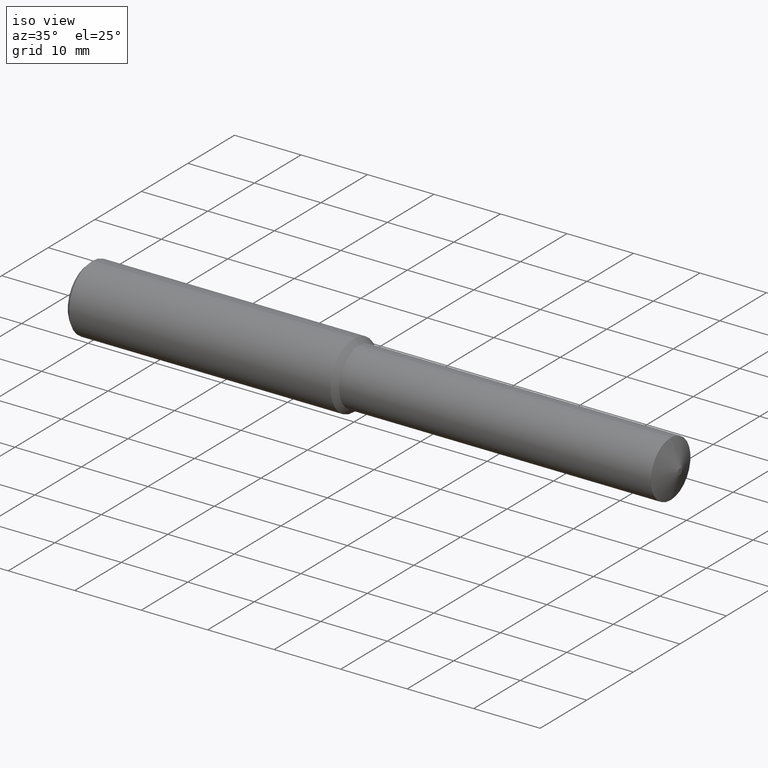
[diagram: clean part render]
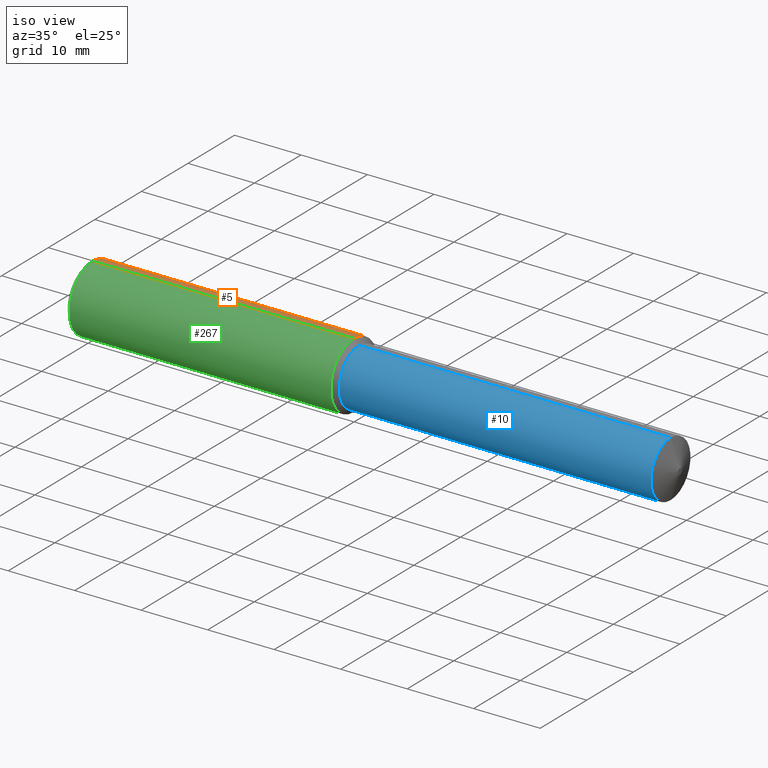
[diagram: same view with three faces highlighted in distinct colors, each labeled with its STEP entity id]
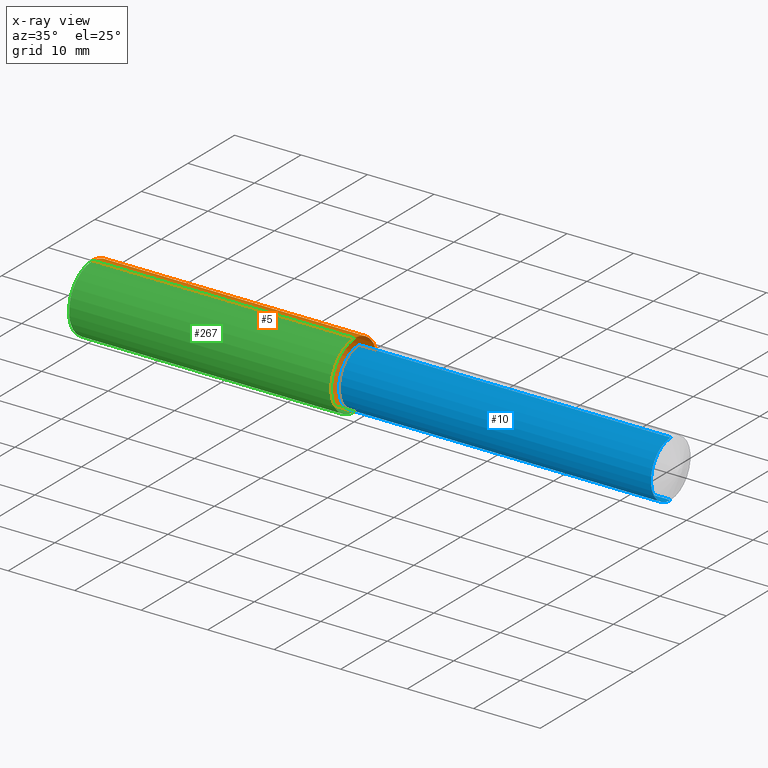
[diagram: x-ray of the same camera — body ghosted, the three highlighted faces saturated]
A machine part, iso view with three faces highlighted in distinct colors.
The next image is the same camera in x-ray (body ghosted, the three faces saturated) — at least one of them is partly hidden behind the body in this view.
Their STEP definitions:

[orange] entity #5 — the highlighted cylindrical surface (partial cylindrical patch) has radius 5 mm, axis along (1, -0, -0).
#5 = ADVANCED_FACE ( 'NONE', ( #375 ), #122, .T. ) ;
#26 = EDGE_CURVE ( 'NONE', #281, #76, #204, .T. ) ;
#27 = VERTEX_POINT ( 'NONE', #201 ) ;
#31 = CIRCLE ( 'NONE', #358, 0.1968503937007876070 ) ;
#34 = DIRECTION ( 'NONE',  ( 1.000000000000000000, -0.000000000000000000, -0.000000000000000000 ) ) ;
#37 = EDGE_CURVE ( 'NONE', #27, #76, #31, .T. ) ;
#61 = CARTESIAN_POINT ( 'NONE',  ( 1.574803149606299302, 0.000000000000000000, 0.1968503937007876070 ) ) ;
#63 = DIRECTION ( 'NONE',  ( 1.000000000000000000, -0.000000000000000000, -0.000000000000000000 ) ) ;
#64 = CARTESIAN_POINT ( 'NONE',  ( -0.03808593750000075634, 0.000000000000000000, 0.000000000000000000 ) ) ;
#66 = DIRECTION ( 'NONE',  ( 1.000000000000000000, -0.000000000000000000, -0.000000000000000000 ) ) ;
#70 = EDGE_CURVE ( 'NONE', #283, #27, #371, .T. ) ;
#75 = DIRECTION ( 'NONE',  ( 1.000000000000000000, -0.000000000000000000, -0.000000000000000000 ) ) ;
#76 = VERTEX_POINT ( 'NONE', #61 ) ;
#80 = VECTOR ( 'NONE', #34, 39.37007874015748143 ) ;
#89 = CARTESIAN_POINT ( 'NONE',  ( 1.574803149606299302, 0.000000000000000000, 0.000000000000000000 ) ) ;
#90 = AXIS2_PLACEMENT_3D ( 'NONE', #333, #75, #187 ) ;
#95 = ORIENTED_EDGE ( 'NONE', *, *, #339, .T. ) ;
#109 = ORIENTED_EDGE ( 'NONE', *, *, #37, .F. ) ;
#122 = CYLINDRICAL_SURFACE ( 'NONE', #224, 0.1968503937007875237 ) ;
#141 = ORIENTED_EDGE ( 'NONE', *, *, #70, .F. ) ;
#151 = VECTOR ( 'NONE', #265, 39.37007874015748143 ) ;
#183 = CIRCLE ( 'NONE', #90, 0.1968503937007873850 ) ;
#187 = DIRECTION ( 'NONE',  ( 0.000000000000000000, 0.000000000000000000, -1.000000000000000000 ) ) ;
#190 = CARTESIAN_POINT ( 'NONE',  ( 0.02500000000000000139, 2.410722045565656686E-17, 0.1968503937007873850 ) ) ;
#201 = CARTESIAN_POINT ( 'NONE',  ( 1.574803149606299302, 2.410722045565658535E-17, -0.1968503937007876070 ) ) ;
#204 = LINE ( 'NONE', #314, #151 ) ;
#224 = AXIS2_PLACEMENT_3D ( 'NONE', #64, #66, #235 ) ;
#235 = DIRECTION ( 'NONE',  ( 0.000000000000000000, 0.000000000000000000, -1.000000000000000000 ) ) ;
#250 = EDGE_LOOP ( 'NONE', ( #95, #365, #109, #141 ) ) ;
#265 = DIRECTION ( 'NONE',  ( 1.000000000000000000, -0.000000000000000000, -0.000000000000000000 ) ) ;
#281 = VERTEX_POINT ( 'NONE', #190 ) ;
#283 = VERTEX_POINT ( 'NONE', #305 ) ;
#292 = DIRECTION ( 'NONE',  ( 0.000000000000000000, 0.000000000000000000, -1.000000000000000000 ) ) ;
#305 = CARTESIAN_POINT ( 'NONE',  ( 0.02500000000000000139, 0.000000000000000000, -0.1968503937007873850 ) ) ;
#314 = CARTESIAN_POINT ( 'NONE',  ( -0.03808593750000075634, 2.410722045565657611E-17, 0.1968503937007875237 ) ) ;
#333 = CARTESIAN_POINT ( 'NONE',  ( 0.02500000000000000139, 0.000000000000000000, 0.000000000000000000 ) ) ;
#339 = EDGE_CURVE ( 'NONE', #283, #281, #183, .T. ) ;
#347 = CARTESIAN_POINT ( 'NONE',  ( -0.03808593750000075634, 0.000000000000000000, -0.1968503937007875237 ) ) ;
#358 = AXIS2_PLACEMENT_3D ( 'NONE', #89, #63, #292 ) ;
#365 = ORIENTED_EDGE ( 'NONE', *, *, #26, .T. ) ;
#371 = LINE ( 'NONE', #347, #80 ) ;
#375 = FACE_OUTER_BOUND ( 'NONE', #250, .T. ) ;

[blue] entity #10 — the highlighted cylindrical surface (edge-blend (fillet) strip) has radius 4.2545 mm, axis along (1, -0, -0).
#8 = LINE ( 'NONE', #353, #129 ) ;
#10 = ADVANCED_FACE ( 'NONE', ( #176 ), #125, .T. ) ;
#12 = CARTESIAN_POINT ( 'NONE',  ( 3.449341472734085645, 0.000000000000000000, 0.000000000000000000 ) ) ;
#18 = DIRECTION ( 'NONE',  ( 1.000000000000000000, -0.000000000000000000, -0.000000000000000000 ) ) ;
#29 = CARTESIAN_POINT ( 'NONE',  ( 1.604153543307087038, 0.000000000000000000, -0.1675000000000002043 ) ) ;
#30 = VERTEX_POINT ( 'NONE', #345 ) ;
#54 = ORIENTED_EDGE ( 'NONE', *, *, #329, .T. ) ;
#56 = DIRECTION ( 'NONE',  ( 1.000000000000000000, -0.000000000000000000, -0.000000000000000000 ) ) ;
#81 = LINE ( 'NONE', #359, #209 ) ;
#99 = CARTESIAN_POINT ( 'NONE',  ( 1.604153543307087038, 2.051283388571819784E-17, 0.1675000000000002043 ) ) ;
#101 = CARTESIAN_POINT ( 'NONE',  ( 3.449341472734085645, 2.051283388571821633E-17, -0.1675000000000003986 ) ) ;
#105 = AXIS2_PLACEMENT_3D ( 'NONE', #258, #233, #348 ) ;
#107 = CIRCLE ( 'NONE', #377, 0.1675000000000004541 ) ;
#118 = ORIENTED_EDGE ( 'NONE', *, *, #316, .F. ) ;
#125 = CYLINDRICAL_SURFACE ( 'NONE', #105, 0.1675000000000003431 ) ;
#129 = VECTOR ( 'NONE', #328, 39.37007874015748143 ) ;
#137 = DIRECTION ( 'NONE',  ( 0.000000000000000000, 0.000000000000000000, -1.000000000000000000 ) ) ;
#147 = EDGE_LOOP ( 'NONE', ( #191, #185, #54, #118 ) ) ;
#162 = AXIS2_PLACEMENT_3D ( 'NONE', #226, #56, #213 ) ;
#176 = FACE_OUTER_BOUND ( 'NONE', #147, .T. ) ;
#185 = ORIENTED_EDGE ( 'NONE', *, *, #288, .T. ) ;
#191 = ORIENTED_EDGE ( 'NONE', *, *, #241, .F. ) ;
#209 = VECTOR ( 'NONE', #310, 39.37007874015748143 ) ;
#213 = DIRECTION ( 'NONE',  ( 0.000000000000000000, 0.000000000000000000, -1.000000000000000000 ) ) ;
#226 = CARTESIAN_POINT ( 'NONE',  ( 1.604153543307087038, 0.000000000000000000, 0.000000000000000000 ) ) ;
#233 = DIRECTION ( 'NONE',  ( 1.000000000000000000, -0.000000000000000000, -0.000000000000000000 ) ) ;
#241 = EDGE_CURVE ( 'NONE', #264, #30, #8, .T. ) ;
#258 = CARTESIAN_POINT ( 'NONE',  ( -0.03808593750000075634, 0.000000000000000000, 0.000000000000000000 ) ) ;
#259 = VERTEX_POINT ( 'NONE', #101 ) ;
#264 = VERTEX_POINT ( 'NONE', #99 ) ;
#288 = EDGE_CURVE ( 'NONE', #264, #361, #330, .T. ) ;
#310 = DIRECTION ( 'NONE',  ( 1.000000000000000000, -0.000000000000000000, -0.000000000000000000 ) ) ;
#316 = EDGE_CURVE ( 'NONE', #30, #259, #107, .T. ) ;
#328 = DIRECTION ( 'NONE',  ( 1.000000000000000000, -0.000000000000000000, -0.000000000000000000 ) ) ;
#329 = EDGE_CURVE ( 'NONE', #361, #259, #81, .T. ) ;
#330 = CIRCLE ( 'NONE', #162, 0.1675000000000002043 ) ;
#345 = CARTESIAN_POINT ( 'NONE',  ( 3.449341472734085645, 0.000000000000000000, 0.1675000000000003986 ) ) ;
#348 = DIRECTION ( 'NONE',  ( 0.000000000000000000, 0.000000000000000000, -1.000000000000000000 ) ) ;
#353 = CARTESIAN_POINT ( 'NONE',  ( -0.03808593750000075634, 2.051283388571820708E-17, 0.1675000000000003431 ) ) ;
#359 = CARTESIAN_POINT ( 'NONE',  ( -0.03808593750000075634, 0.000000000000000000, -0.1675000000000003431 ) ) ;
#361 = VERTEX_POINT ( 'NONE', #29 ) ;
#377 = AXIS2_PLACEMENT_3D ( 'NONE', #12, #18, #137 ) ;

[green] entity #267 — the highlighted cylindrical surface (partial cylindrical patch) has radius 5 mm, axis along (1, -0, -0).
#3 = CARTESIAN_POINT ( 'NONE',  ( 0.02500000000000000139, 0.000000000000000000, 0.000000000000000000 ) ) ;
#26 = EDGE_CURVE ( 'NONE', #281, #76, #204, .T. ) ;
#27 = VERTEX_POINT ( 'NONE', #201 ) ;
#34 = DIRECTION ( 'NONE',  ( 1.000000000000000000, -0.000000000000000000, -0.000000000000000000 ) ) ;
#60 = CIRCLE ( 'NONE', #205, 0.1968503937007873850 ) ;
#61 = CARTESIAN_POINT ( 'NONE',  ( 1.574803149606299302, 0.000000000000000000, 0.1968503937007876070 ) ) ;
#69 = DIRECTION ( 'NONE',  ( 1.000000000000000000, -0.000000000000000000, -0.000000000000000000 ) ) ;
#70 = EDGE_CURVE ( 'NONE', #283, #27, #371, .T. ) ;
#76 = VERTEX_POINT ( 'NONE', #61 ) ;
#80 = VECTOR ( 'NONE', #34, 39.37007874015748143 ) ;
#128 = DIRECTION ( 'NONE',  ( 0.000000000000000000, 0.000000000000000000, -1.000000000000000000 ) ) ;
#134 = FACE_OUTER_BOUND ( 'NONE', #321, .T. ) ;
#138 = ORIENTED_EDGE ( 'NONE', *, *, #70, .T. ) ;
#140 = DIRECTION ( 'NONE',  ( 1.000000000000000000, -0.000000000000000000, -0.000000000000000000 ) ) ;
#151 = VECTOR ( 'NONE', #265, 39.37007874015748143 ) ;
#175 = EDGE_CURVE ( 'NONE', #281, #283, #60, .T. ) ;
#182 = DIRECTION ( 'NONE',  ( 0.000000000000000000, 0.000000000000000000, -1.000000000000000000 ) ) ;
#184 = DIRECTION ( 'NONE',  ( 0.000000000000000000, 0.000000000000000000, -1.000000000000000000 ) ) ;
#190 = CARTESIAN_POINT ( 'NONE',  ( 0.02500000000000000139, 2.410722045565656686E-17, 0.1968503937007873850 ) ) ;
#196 = ORIENTED_EDGE ( 'NONE', *, *, #26, .F. ) ;
#201 = CARTESIAN_POINT ( 'NONE',  ( 1.574803149606299302, 2.410722045565658535E-17, -0.1968503937007876070 ) ) ;
#204 = LINE ( 'NONE', #314, #151 ) ;
#205 = AXIS2_PLACEMENT_3D ( 'NONE', #3, #238, #128 ) ;
#217 = CARTESIAN_POINT ( 'NONE',  ( 1.574803149606299302, 0.000000000000000000, 0.000000000000000000 ) ) ;
#238 = DIRECTION ( 'NONE',  ( 1.000000000000000000, -0.000000000000000000, -0.000000000000000000 ) ) ;
#254 = CIRCLE ( 'NONE', #349, 0.1968503937007876070 ) ;
#265 = DIRECTION ( 'NONE',  ( 1.000000000000000000, -0.000000000000000000, -0.000000000000000000 ) ) ;
#267 = ADVANCED_FACE ( 'NONE', ( #134 ), #325, .T. ) ;
#277 = EDGE_CURVE ( 'NONE', #76, #27, #254, .T. ) ;
#281 = VERTEX_POINT ( 'NONE', #190 ) ;
#282 = ORIENTED_EDGE ( 'NONE', *, *, #175, .T. ) ;
#283 = VERTEX_POINT ( 'NONE', #305 ) ;
#305 = CARTESIAN_POINT ( 'NONE',  ( 0.02500000000000000139, 0.000000000000000000, -0.1968503937007873850 ) ) ;
#314 = CARTESIAN_POINT ( 'NONE',  ( -0.03808593750000075634, 2.410722045565657611E-17, 0.1968503937007875237 ) ) ;
#321 = EDGE_LOOP ( 'NONE', ( #196, #282, #138, #362 ) ) ;
#324 = AXIS2_PLACEMENT_3D ( 'NONE', #327, #69, #182 ) ;
#325 = CYLINDRICAL_SURFACE ( 'NONE', #324, 0.1968503937007875237 ) ;
#327 = CARTESIAN_POINT ( 'NONE',  ( -0.03808593750000075634, 0.000000000000000000, 0.000000000000000000 ) ) ;
#347 = CARTESIAN_POINT ( 'NONE',  ( -0.03808593750000075634, 0.000000000000000000, -0.1968503937007875237 ) ) ;
#349 = AXIS2_PLACEMENT_3D ( 'NONE', #217, #140, #184 ) ;
#362 = ORIENTED_EDGE ( 'NONE', *, *, #277, .F. ) ;
#371 = LINE ( 'NONE', #347, #80 ) ;